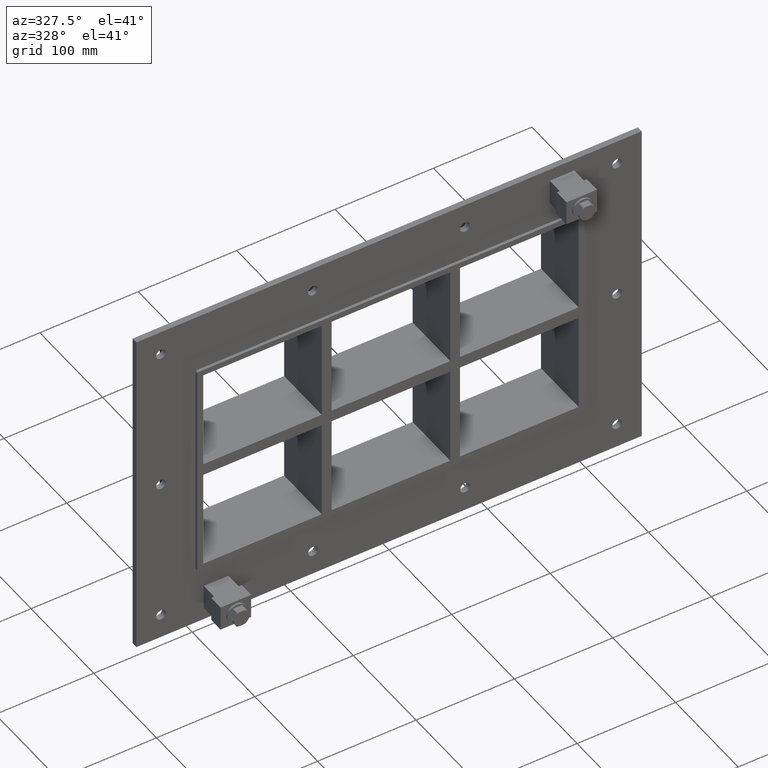
[diagram: clean part render]
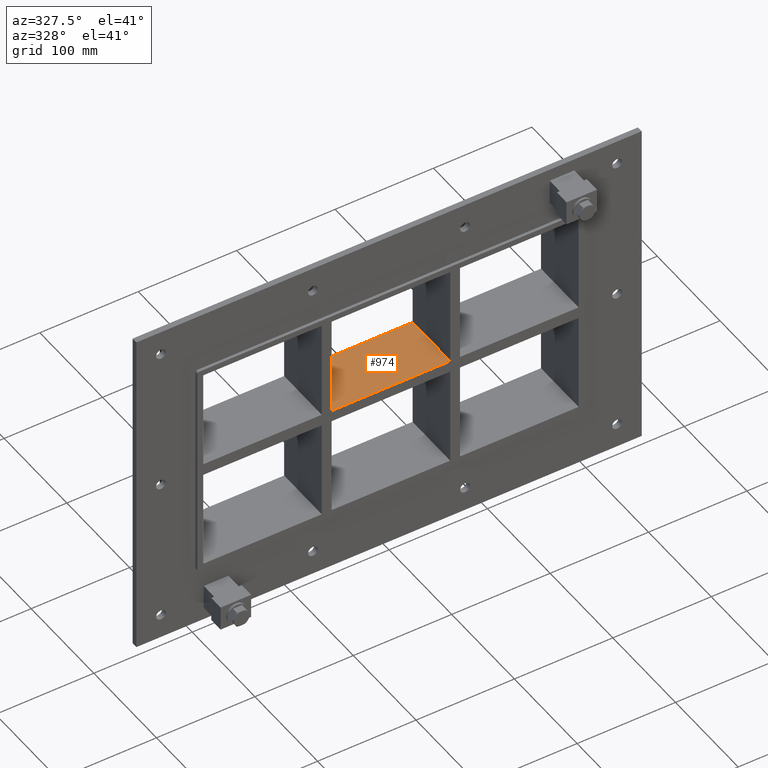
[diagram: same view with one face highlighted and labeled with its STEP entity id]
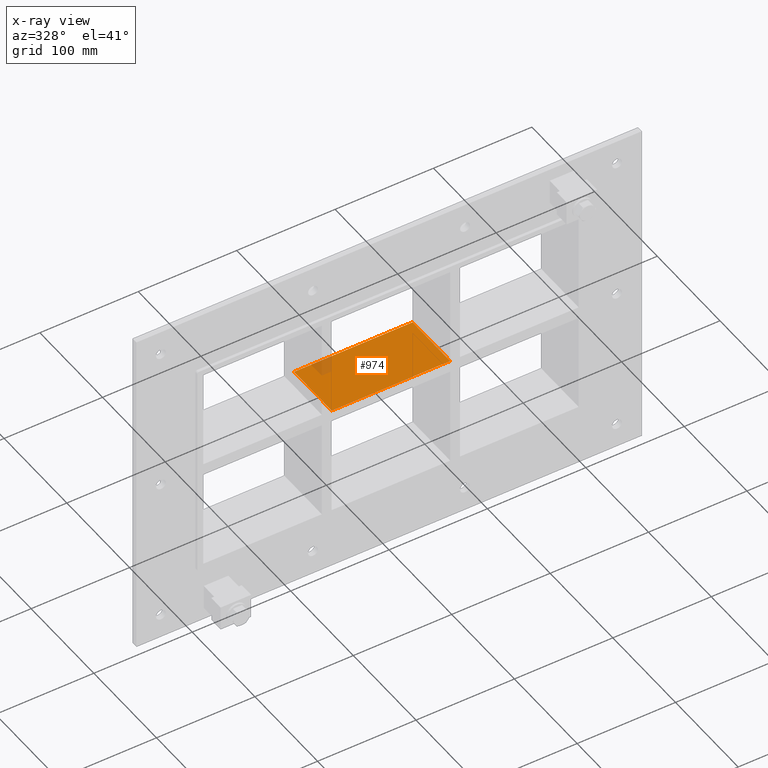
[diagram: x-ray of the same camera — body ghosted, the highlighted face saturated]
A machine part, auxiliary view. The second image highlights one B-rep face of the part: STEP entity #974.
The next image is the same camera in x-ray: the body ghosted, the highlighted face saturated — about 4% of this face is hidden behind the body in this view.
In plain terms, the highlighted planar face has unit normal (0, 0, 1).
Its self-contained STEP definition (entity closure, byte-faithful):
#353=CARTESIAN_POINT('',(60.249999999999645,-3.0,6.000000000000227));
#354=VERTEX_POINT('',#353);
#355=CARTESIAN_POINT('',(60.249999999999645,57.0,6.000000000000227));
#356=VERTEX_POINT('',#355);
#357=CARTESIAN_POINT('',(60.249999999999638,-3.0,6.000000000000227));
#358=DIRECTION('',(0.0,1.0,0.0));
#359=VECTOR('',#358,60.0);
#360=LINE('',#357,#359);
#361=EDGE_CURVE('',#354,#356,#360,.T.);
#663=CARTESIAN_POINT('',(-60.249999999996362,-3.0,6.000000000000227));
#664=VERTEX_POINT('',#663);
#665=CARTESIAN_POINT('',(-60.249999999996362,-3.0,6.000000000000227));
#666=DIRECTION('',(1.0,0.0,0.0));
#667=VECTOR('',#666,120.49999999999599);
#668=LINE('',#665,#667);
#669=EDGE_CURVE('',#664,#354,#668,.T.);
#951=CARTESIAN_POINT('',(-190.74999999999875,-3.0,6.000000000000227));
#952=DIRECTION('',(0.0,0.0,1.0));
#953=DIRECTION('',(1.0,0.0,0.0));
#954=AXIS2_PLACEMENT_3D('',#951,#952,#953);
#955=PLANE('',#954);
#956=ORIENTED_EDGE('',*,*,#361,.T.);
#957=CARTESIAN_POINT('',(-60.249999999996362,57.0,6.000000000000227));
#958=VERTEX_POINT('',#957);
#959=CARTESIAN_POINT('',(-60.249999999996362,57.0,6.000000000000227));
#960=DIRECTION('',(1.0,0.0,0.0));
#961=VECTOR('',#960,120.49999999999599);
#962=LINE('',#959,#961);
#963=EDGE_CURVE('',#958,#356,#962,.T.);
#964=ORIENTED_EDGE('',*,*,#963,.F.);
#965=CARTESIAN_POINT('',(-60.249999999996362,-3.0,6.000000000000227));
#966=DIRECTION('',(0.0,1.0,0.0));
#967=VECTOR('',#966,60.0);
#968=LINE('',#965,#967);
#969=EDGE_CURVE('',#664,#958,#968,.T.);
#970=ORIENTED_EDGE('',*,*,#969,.F.);
#971=ORIENTED_EDGE('',*,*,#669,.T.);
#972=EDGE_LOOP('',(#956,#964,#970,#971));
#973=FACE_OUTER_BOUND('',#972,.T.);
#974=ADVANCED_FACE('',(#973),#955,.T.);